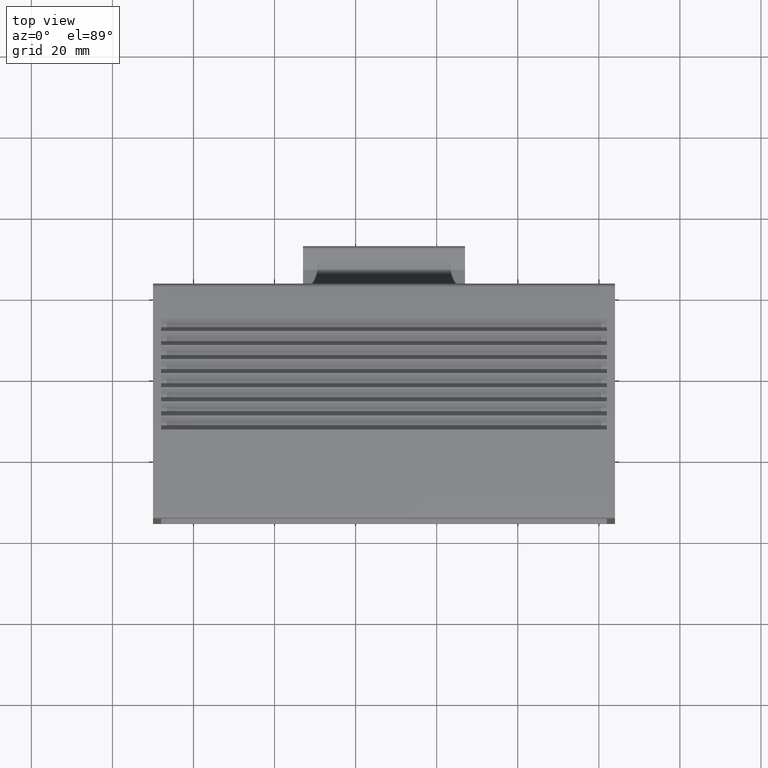
[diagram: clean part render]
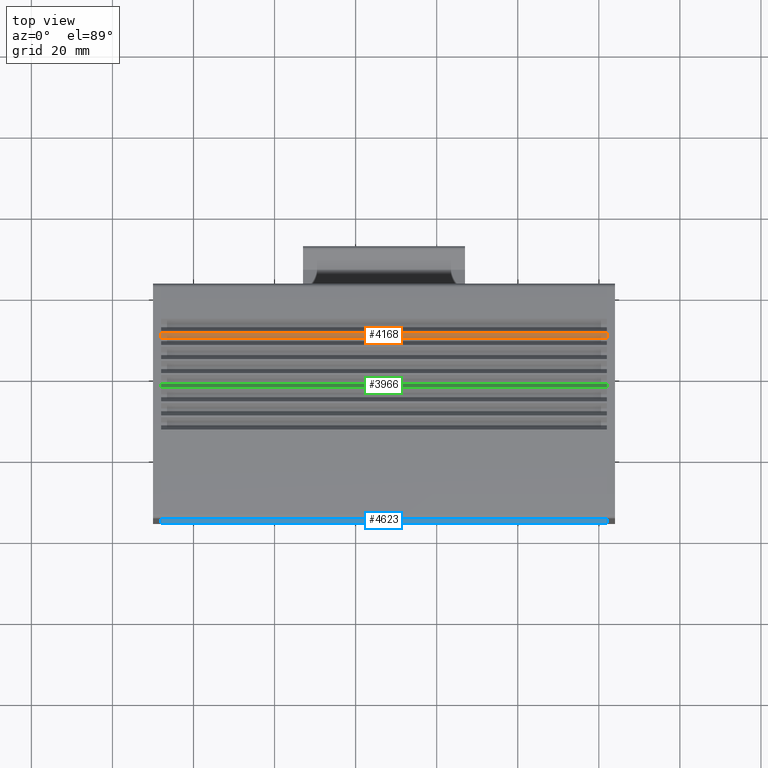
[diagram: same view with three faces highlighted in distinct colors, each labeled with its STEP entity id]
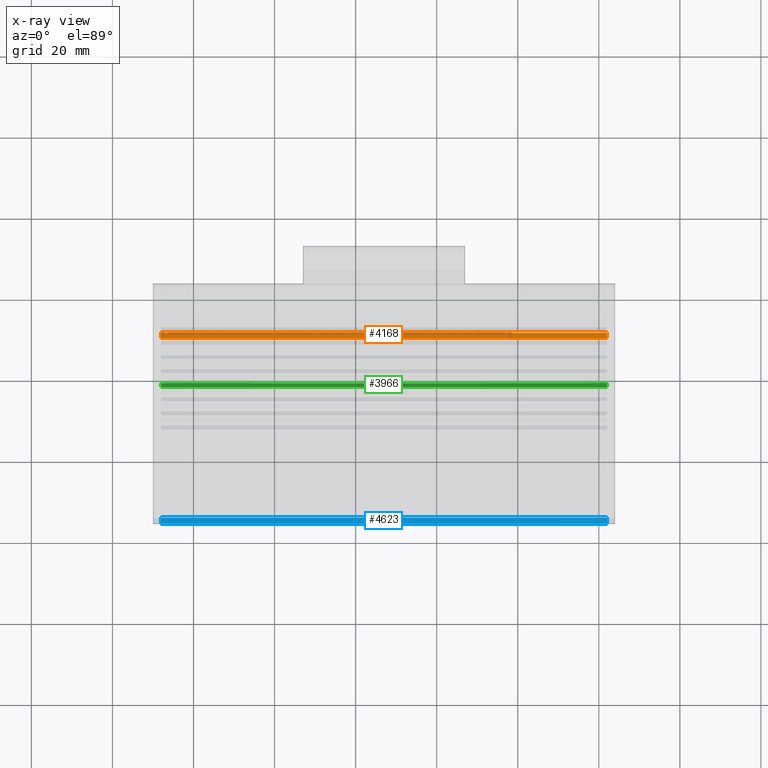
[diagram: x-ray of the same camera — body ghosted, the three highlighted faces saturated]
A machine part, top view with three faces highlighted in distinct colors.
The next image is the same camera in x-ray (body ghosted, the three faces saturated) — at least one of them is partly hidden behind the body in this view.
Their STEP definitions:

[orange] entity #4168 — the highlighted planar face has unit normal (-0, 0.8141, -0.5807).
#2365=CARTESIAN_POINT('',(-88.447142721739567,-8.457274463743250,109.500000000000000));
#2366=VERTEX_POINT('',#2365);
#2373=CARTESIAN_POINT('',(-89.788218752935308,-6.577155209045259,109.500000000000000));
#2374=VERTEX_POINT('',#2373);
#2375=CARTESIAN_POINT('',(-88.447142721739567,-8.457274463743250,109.500000000000000));
#2376=DIRECTION('',(-0.580702955710934,0.814115518356324,0.0));
#2377=VECTOR('',#2376,2.309401076758614);
#2378=LINE('',#2375,#2377);
#2379=EDGE_CURVE('',#2366,#2374,#2378,.T.);
#2600=CARTESIAN_POINT('',(-89.788218752935251,-6.577155209045351,-0.500000000000000));
#2601=VERTEX_POINT('',#2600);
#2609=CARTESIAN_POINT('',(-88.447142721739567,-8.457274463743250,-0.500000000000000));
#2610=VERTEX_POINT('',#2609);
#2611=CARTESIAN_POINT('',(-89.788218752935251,-6.577155209045351,-0.500000000000000));
#2612=DIRECTION('',(0.580702955710936,-0.814115518356322,0.0));
#2613=VECTOR('',#2612,2.309401076758507);
#2614=LINE('',#2611,#2613);
#2615=EDGE_CURVE('',#2601,#2610,#2614,.T.);
#4143=CARTESIAN_POINT('',(-88.447142721739567,-8.457274463743250,-0.500000000000000));
#4144=DIRECTION('',(0.0,0.0,1.0));
#4145=VECTOR('',#4144,110.0);
#4146=LINE('',#4143,#4145);
#4147=EDGE_CURVE('',#2610,#2366,#4146,.T.);
#4152=CARTESIAN_POINT('',(-88.447142721739567,-8.457274463743250,-0.500000000000000));
#4153=DIRECTION('',(-0.814115518356319,-0.580702955710940,0.0));
#4154=DIRECTION('',(0.0,0.0,1.0));
#4155=AXIS2_PLACEMENT_3D('',#4152,#4153,#4154);
#4156=PLANE('',#4155);
#4157=ORIENTED_EDGE('',*,*,#2379,.F.);
#4158=ORIENTED_EDGE('',*,*,#4147,.F.);
#4159=ORIENTED_EDGE('',*,*,#2615,.F.);
#4160=CARTESIAN_POINT('',(-89.788218752935308,-6.577155209045259,109.500000000000000));
#4161=DIRECTION('',(0.0,0.0,-1.0));
#4162=VECTOR('',#4161,110.0);
#4163=LINE('',#4160,#4162);
#4164=EDGE_CURVE('',#2374,#2601,#4163,.T.);
#4165=ORIENTED_EDGE('',*,*,#4164,.F.);
#4166=EDGE_LOOP('',(#4157,#4158,#4159,#4165));
#4167=FACE_OUTER_BOUND('',#4166,.T.);
#4168=ADVANCED_FACE('',(#4167),#4156,.F.);

[blue] entity #4623 — the highlighted planar face has unit normal (-0, -0, -1).
#2093=CARTESIAN_POINT('',(-43.957093014422604,-80.589066365486588,109.500000000000000));
#2094=VERTEX_POINT('',#2093);
#2101=CARTESIAN_POINT('',(-45.457093014422597,-80.589066365486588,109.500000000000000));
#2102=VERTEX_POINT('',#2101);
#2103=CARTESIAN_POINT('',(-43.957093014422604,-80.589066365486588,109.500000000000000));
#2104=DIRECTION('',(-1.0,0.0,0.0));
#2105=VECTOR('',#2104,1.499999999999993);
#2106=LINE('',#2103,#2105);
#2107=EDGE_CURVE('',#2094,#2102,#2106,.T.);
#2873=CARTESIAN_POINT('',(-45.457093014422597,-80.589066365486588,-0.500000000000000));
#2874=VERTEX_POINT('',#2873);
#2881=CARTESIAN_POINT('',(-43.957093014422604,-80.589066365486588,-0.500000000000000));
#2882=VERTEX_POINT('',#2881);
#2883=CARTESIAN_POINT('',(-45.457093014422597,-80.589066365486588,-0.500000000000000));
#2884=DIRECTION('',(1.0,0.0,0.0));
#2885=VECTOR('',#2884,1.499999999999993);
#2886=LINE('',#2883,#2885);
#2887=EDGE_CURVE('',#2874,#2882,#2886,.T.);
#3254=CARTESIAN_POINT('',(-43.957093014422604,-80.589066365486588,-0.500000000000000));
#3255=DIRECTION('',(0.0,0.0,1.0));
#3256=VECTOR('',#3255,110.0);
#3257=LINE('',#3254,#3256);
#3258=EDGE_CURVE('',#2882,#2094,#3257,.T.);
#4607=CARTESIAN_POINT('',(-43.957093014422604,-80.589066365486588,-0.500000000000000));
#4608=DIRECTION('',(0.0,-1.0,0.0));
#4609=DIRECTION('',(0.0,0.0,-1.0));
#4610=AXIS2_PLACEMENT_3D('',#4607,#4608,#4609);
#4611=PLANE('',#4610);
#4612=ORIENTED_EDGE('',*,*,#2107,.F.);
#4613=ORIENTED_EDGE('',*,*,#3258,.F.);
#4614=ORIENTED_EDGE('',*,*,#2887,.F.);
#4615=CARTESIAN_POINT('',(-45.457093014422597,-80.589066365486588,-0.500000000000000));
#4616=DIRECTION('',(0.0,0.0,1.0));
#4617=VECTOR('',#4616,110.0);
#4618=LINE('',#4615,#4617);
#4619=EDGE_CURVE('',#2874,#2102,#4618,.T.);
#4620=ORIENTED_EDGE('',*,*,#4619,.T.);
#4621=EDGE_LOOP('',(#4612,#4613,#4614,#4620));
#4622=FACE_OUTER_BOUND('',#4621,.T.);
#4623=ADVANCED_FACE('',(#4622),#4611,.F.);

[green] entity #3966 — the highlighted planar face has unit normal (-0, -0.8988, -0.4384).
#2249=CARTESIAN_POINT('',(-76.363140245909790,-5.461617209695545,109.500000000000000));
#2250=VERTEX_POINT('',#2249);
#2258=CARTESIAN_POINT('',(-77.375515044324345,-7.537293148002977,109.500000000000000));
#2259=VERTEX_POINT('',#2258);
#2260=CARTESIAN_POINT('',(-76.363140245909790,-5.461617209695545,109.500000000000000));
#2261=DIRECTION('',(-0.438371146789077,-0.898794046299167,0.0));
#2262=VECTOR('',#2261,2.309401076758507);
#2263=LINE('',#2260,#2262);
#2264=EDGE_CURVE('',#2250,#2259,#2263,.T.);
#2716=CARTESIAN_POINT('',(-77.375515044324345,-7.537293148002977,-0.500000000000000));
#2717=VERTEX_POINT('',#2716);
#2724=CARTESIAN_POINT('',(-76.363140245909790,-5.461617209695545,-0.500000000000000));
#2725=VERTEX_POINT('',#2724);
#2726=CARTESIAN_POINT('',(-77.375515044324345,-7.537293148002977,-0.500000000000000));
#2727=DIRECTION('',(0.438371146789077,0.898794046299167,0.0));
#2728=VECTOR('',#2727,2.309401076758507);
#2729=LINE('',#2726,#2728);
#2730=EDGE_CURVE('',#2717,#2725,#2729,.T.);
#3945=CARTESIAN_POINT('',(-76.363140245909790,-5.461617209695545,-0.500000000000000));
#3946=DIRECTION('',(0.898794046299167,-0.438371146789077,0.0));
#3947=DIRECTION('',(0.0,0.0,-1.0));
#3948=AXIS2_PLACEMENT_3D('',#3945,#3946,#3947);
#3949=PLANE('',#3948);
#3950=ORIENTED_EDGE('',*,*,#2264,.F.);
#3951=CARTESIAN_POINT('',(-76.363140245909790,-5.461617209695545,-0.500000000000000));
#3952=DIRECTION('',(0.0,0.0,1.0));
#3953=VECTOR('',#3952,110.0);
#3954=LINE('',#3951,#3953);
#3955=EDGE_CURVE('',#2725,#2250,#3954,.T.);
#3956=ORIENTED_EDGE('',*,*,#3955,.F.);
#3957=ORIENTED_EDGE('',*,*,#2730,.F.);
#3958=CARTESIAN_POINT('',(-77.375515044324345,-7.537293148002977,-0.500000000000000));
#3959=DIRECTION('',(0.0,0.0,1.0));
#3960=VECTOR('',#3959,110.0);
#3961=LINE('',#3958,#3960);
#3962=EDGE_CURVE('',#2717,#2259,#3961,.T.);
#3963=ORIENTED_EDGE('',*,*,#3962,.T.);
#3964=EDGE_LOOP('',(#3950,#3956,#3957,#3963));
#3965=FACE_OUTER_BOUND('',#3964,.T.);
#3966=ADVANCED_FACE('',(#3965),#3949,.F.);